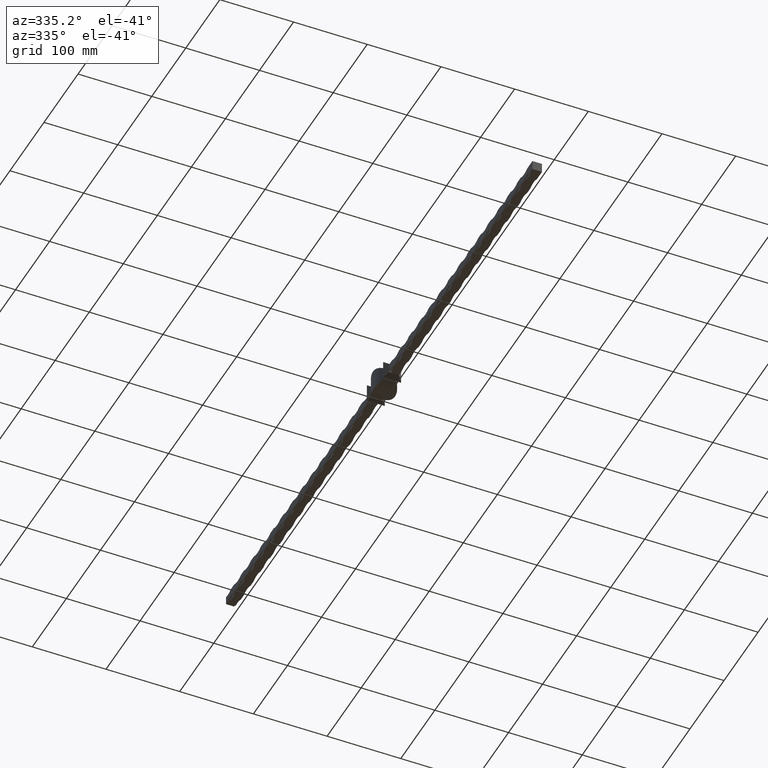
[diagram: clean part render]
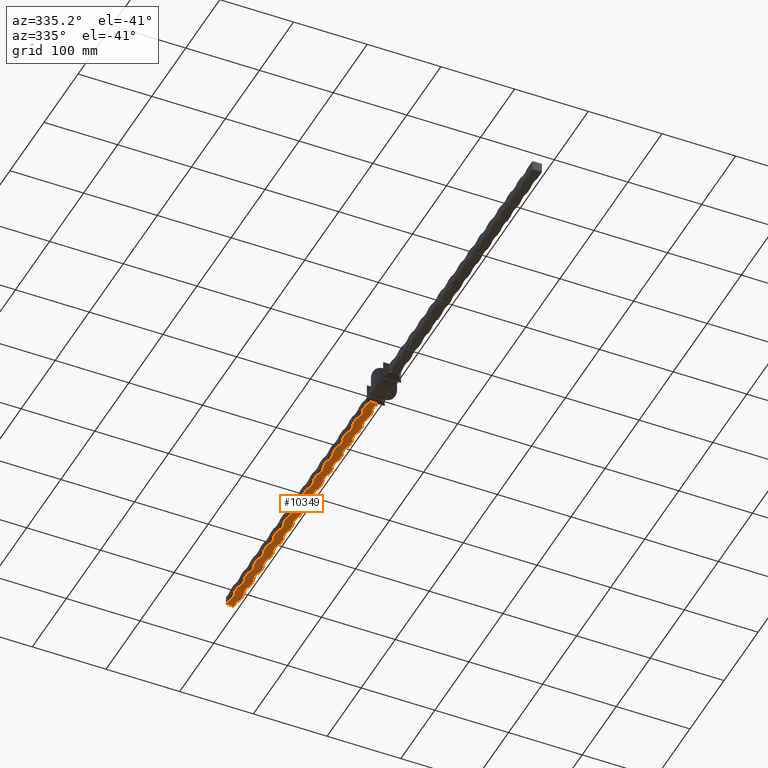
[diagram: same view with one face highlighted and labeled with its STEP entity id]
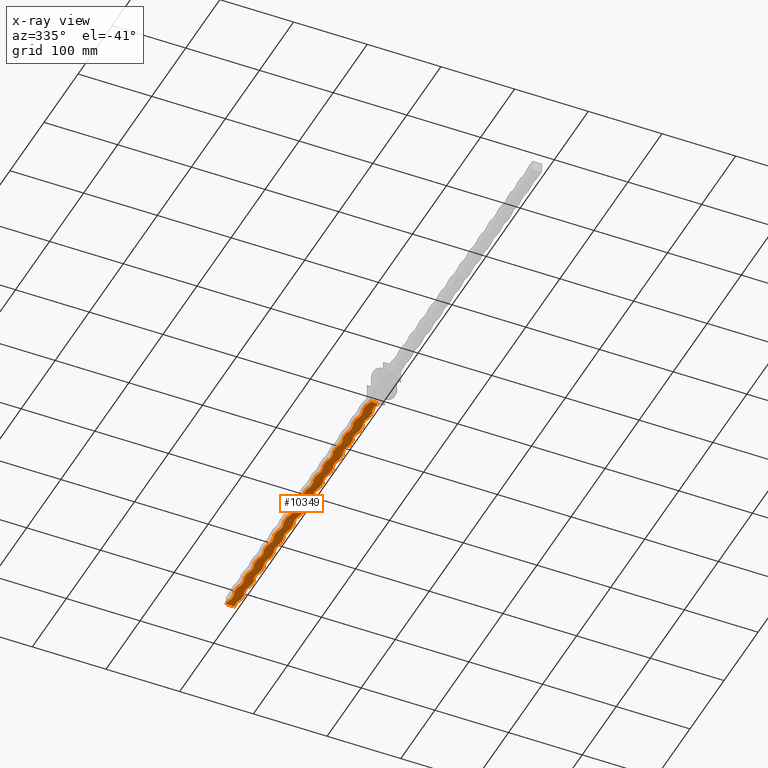
[diagram: x-ray of the same camera — body ghosted, the highlighted face saturated]
A machine part, auxiliary view. The second image highlights one B-rep face of the part: STEP entity #10349.
The next image is the same camera in x-ray: the body ghosted, the highlighted face saturated — about 0% of this face is hidden behind the body in this view.
In plain terms, the highlighted planar face has unit normal (0, 0, 1).
Its self-contained STEP definition (entity closure, byte-faithful):
#22 = DIRECTION ( 'NONE',  ( -0.000000000000000000, -1.000000000000000000, -0.000000000000000000 ) ) ;
#53 = EDGE_CURVE ( 'NONE', #7041, #332, #10319, .T. ) ;
#93 = VECTOR ( 'NONE', #5450, 1000.000000000000000 ) ;
#105 = DIRECTION ( 'NONE',  ( -0.000000000000000000, -1.000000000000000000, -0.000000000000000000 ) ) ;
#122 = VERTEX_POINT ( 'NONE', #4727 ) ;
#126 = DIRECTION ( 'NONE',  ( 1.000000000000000000, 0.000000000000000000, 0.000000000000000000 ) ) ;
#136 = CARTESIAN_POINT ( 'NONE',  ( -6.500000000000000888, 450.0000000000000000, -6.499999999999999112 ) ) ;
#145 = AXIS2_PLACEMENT_3D ( 'NONE', #11147, #8956, #2846 ) ;
#179 = EDGE_CURVE ( 'NONE', #1884, #1511, #8609, .T. ) ;
#206 = ORIENTED_EDGE ( 'NONE', *, *, #11184, .F. ) ;
#210 = AXIS2_PLACEMENT_3D ( 'NONE', #8120, #3117, #4297 ) ;
#216 = CARTESIAN_POINT ( 'NONE',  ( 25.24999999999998579, 38.99999999999997868, -6.500000000000014211 ) ) ;
#218 = CARTESIAN_POINT ( 'NONE',  ( 6.499999999999999112, 397.0000000000000000, -6.500000000000000888 ) ) ;
#246 = CARTESIAN_POINT ( 'NONE',  ( 6.499999999999999112, 252.0000000000000000, -6.500000000000000888 ) ) ;
#275 = VERTEX_POINT ( 'NONE', #7725 ) ;
#288 = VERTEX_POINT ( 'NONE', #11397 ) ;
#293 = DIRECTION ( 'NONE',  ( -0.000000000000000000, -1.000000000000000000, -0.000000000000000000 ) ) ;
#332 = VERTEX_POINT ( 'NONE', #2089 ) ;
#342 = VERTEX_POINT ( 'NONE', #5703 ) ;
#346 = EDGE_CURVE ( 'NONE', #10152, #1511, #8986, .T. ) ;
#347 = CIRCLE ( 'NONE', #10016, 21.25000000000000000 ) ;
#385 = VERTEX_POINT ( 'NONE', #14786 ) ;
#483 = ORIENTED_EDGE ( 'NONE', *, *, #5957, .T. ) ;
#558 = LINE ( 'NONE', #2034, #9791 ) ;
#595 = EDGE_CURVE ( 'NONE', #4409, #7179, #12580, .T. ) ;
#631 = CARTESIAN_POINT ( 'NONE',  ( -6.500000000000002665, 97.00000000000000000, -6.499999999999999112 ) ) ;
#640 = LINE ( 'NONE', #991, #1394 ) ;
#658 = VECTOR ( 'NONE', #2444, 1000.000000000000000 ) ;
#666 = VECTOR ( 'NONE', #9452, 1000.000000000000000 ) ;
#684 = CARTESIAN_POINT ( 'NONE',  ( -6.500000000000000888, 450.0000000000000000, -6.499999999999999112 ) ) ;
#695 = AXIS2_PLACEMENT_3D ( 'NONE', #2015, #5675, #7001 ) ;
#699 = AXIS2_PLACEMENT_3D ( 'NONE', #216, #9830, #7753 ) ;
#746 = CARTESIAN_POINT ( 'NONE',  ( -6.500000000000000888, 450.0000000000000000, -6.499999999999999112 ) ) ;
#769 = VERTEX_POINT ( 'NONE', #15560 ) ;
#790 = VERTEX_POINT ( 'NONE', #12084 ) ;
#795 = ORIENTED_EDGE ( 'NONE', *, *, #5411, .T. ) ;
#871 = CARTESIAN_POINT ( 'NONE',  ( 6.499999999999999112, 136.0000000000000000, -6.500000000000000888 ) ) ;
#876 = CARTESIAN_POINT ( 'NONE',  ( 6.499999999999995559, 376.9999999999999432, -6.500000000000014211 ) ) ;
#970 = CARTESIAN_POINT ( 'NONE',  ( -25.25000000000000355, 406.0000000000000000, -6.499999999999968914 ) ) ;
#982 = VERTEX_POINT ( 'NONE', #3245 ) ;
#991 = CARTESIAN_POINT ( 'NONE',  ( 6.499999999999997335, 450.0000000000000000, -6.499999999999999112 ) ) ;
#1134 = VERTEX_POINT ( 'NONE', #13233 ) ;
#1140 = VECTOR ( 'NONE', #10225, 1000.000000000000000 ) ;
#1220 = AXIS2_PLACEMENT_3D ( 'NONE', #13073, #5811, #7026 ) ;
#1236 = CARTESIAN_POINT ( 'NONE',  ( 6.499999999999997335, 450.0000000000000000, -6.499999999999999112 ) ) ;
#1239 = CARTESIAN_POINT ( 'NONE',  ( 6.499999999999995559, 290.0000000000000000, -6.500000000000014211 ) ) ;
#1307 = EDGE_CURVE ( 'NONE', #10897, #275, #15029, .T. ) ;
#1311 = ORIENTED_EDGE ( 'NONE', *, *, #13557, .F. ) ;
#1394 = VECTOR ( 'NONE', #13147, 1000.000000000000000 ) ;
#1397 = CARTESIAN_POINT ( 'NONE',  ( -6.500000000000002665, 126.0000000000000000, -6.499999999999999112 ) ) ;
#1409 = VECTOR ( 'NONE', #22, 1000.000000000000000 ) ;
#1415 = DIRECTION ( 'NONE',  ( -0.000000000000000000, -1.000000000000000000, -0.000000000000000000 ) ) ;
#1452 = EDGE_CURVE ( 'NONE', #14408, #2236, #15590, .T. ) ;
#1499 = ORIENTED_EDGE ( 'NONE', *, *, #10053, .T. ) ;
#1511 = VERTEX_POINT ( 'NONE', #13324 ) ;
#1514 = CARTESIAN_POINT ( 'NONE',  ( -6.500000000000000888, 450.0000000000000000, -6.499999999999999112 ) ) ;
#1589 = EDGE_CURVE ( 'NONE', #7041, #6484, #10472, .T. ) ;
#1597 = CARTESIAN_POINT ( 'NONE',  ( 6.499999999999999112, 339.0000000000000000, -6.500000000000000888 ) ) ;
#1609 = ORIENTED_EDGE ( 'NONE', *, *, #5296, .F. ) ;
#1610 = CARTESIAN_POINT ( 'NONE',  ( -6.500000000000002665, 300.0000000000000568, -6.499999999999999112 ) ) ;
#1616 = DIRECTION ( 'NONE',  ( -0.000000000000000000, -0.000000000000000000, -1.000000000000000000 ) ) ;
#1617 = ORIENTED_EDGE ( 'NONE', *, *, #7255, .T. ) ;
#1631 = ORIENTED_EDGE ( 'NONE', *, *, #179, .T. ) ;
#1690 = VERTEX_POINT ( 'NONE', #3708 ) ;
#1705 = VERTEX_POINT ( 'NONE', #4832 ) ;
#1710 = EDGE_CURVE ( 'NONE', #14061, #769, #1935, .T. ) ;
#1787 = VERTEX_POINT ( 'NONE', #14132 ) ;
#1801 = CARTESIAN_POINT ( 'NONE',  ( -6.500000000000002665, 134.9999999999999432, -6.499999999999999112 ) ) ;
#1845 = EDGE_CURVE ( 'NONE', #3215, #8845, #13138, .T. ) ;
#1858 = CIRCLE ( 'NONE', #15683, 21.24999999999998934 ) ;
#1884 = VERTEX_POINT ( 'NONE', #14079 ) ;
#1921 = CIRCLE ( 'NONE', #11533, 21.24999999999998934 ) ;
#1928 = ORIENTED_EDGE ( 'NONE', *, *, #53, .T. ) ;
#1935 = LINE ( 'NONE', #1514, #8008 ) ;
#1956 = CIRCLE ( 'NONE', #3672, 21.25000000000000000 ) ;
#1967 = DIRECTION ( 'NONE',  ( 0.000000000000000000, 0.000000000000000000, 1.000000000000000000 ) ) ;
#1971 = DIRECTION ( 'NONE',  ( -0.000000000000000000, -1.000000000000000000, -0.000000000000000000 ) ) ;
#1976 = CARTESIAN_POINT ( 'NONE',  ( -6.500000000000002665, 445.0000000000000000, -6.499999999999999112 ) ) ;
#2015 = CARTESIAN_POINT ( 'NONE',  ( -25.25000000000000355, 319.0000000000000000, -6.499999999999968914 ) ) ;
#2016 = CARTESIAN_POINT ( 'NONE',  ( -6.500000000000002665, 337.9999999999999432, -6.499999999999999112 ) ) ;
#2034 = CARTESIAN_POINT ( 'NONE',  ( -6.500000000000000888, 450.0000000000000000, -6.499999999999999112 ) ) ;
#2037 = EDGE_CURVE ( 'NONE', #12160, #5964, #14439, .T. ) ;
#2054 = DIRECTION ( 'NONE',  ( -0.000000000000000000, -1.000000000000000000, -0.000000000000000000 ) ) ;
#2075 = DIRECTION ( 'NONE',  ( 0.000000000000000000, 0.000000000000000000, 1.000000000000000000 ) ) ;
#2089 = CARTESIAN_POINT ( 'NONE',  ( -6.500000000000002665, 329.0000000000000000, -6.499999999999999112 ) ) ;
#2116 = EDGE_CURVE ( 'NONE', #4409, #8269, #4982, .T. ) ;
#2176 = VECTOR ( 'NONE', #13474, 1000.000000000000000 ) ;
#2236 = VERTEX_POINT ( 'NONE', #1976 ) ;
#2302 = DIRECTION ( 'NONE',  ( 1.000000000000000000, 0.000000000000000000, 0.000000000000000000 ) ) ;
#2333 = DIRECTION ( 'NONE',  ( -0.000000000000000000, -1.000000000000000000, -0.000000000000000000 ) ) ;
#2438 = AXIS2_PLACEMENT_3D ( 'NONE', #970, #15594, #2302 ) ;
#2444 = DIRECTION ( 'NONE',  ( -0.000000000000000000, -1.000000000000000000, -0.000000000000000000 ) ) ;
#2496 = ORIENTED_EDGE ( 'NONE', *, *, #13737, .F. ) ;
#2548 = ORIENTED_EDGE ( 'NONE', *, *, #2888, .F. ) ;
#2553 = CARTESIAN_POINT ( 'NONE',  ( 6.499999999999995559, 260.9999999999999432, -6.500000000000014211 ) ) ;
#2696 = VECTOR ( 'NONE', #3918, 1000.000000000000000 ) ;
#2701 = LINE ( 'NONE', #8588, #12010 ) ;
#2703 = VERTEX_POINT ( 'NONE', #1397 ) ;
#2764 = CARTESIAN_POINT ( 'NONE',  ( -6.500000000000002665, 155.0000000000000284, -6.499999999999999112 ) ) ;
#2787 = VERTEX_POINT ( 'NONE', #5442 ) ;
#2803 = AXIS2_PLACEMENT_3D ( 'NONE', #6581, #14202, #15313 ) ;
#2818 = DIRECTION ( 'NONE',  ( 1.000000000000000000, 0.000000000000000000, 0.000000000000000000 ) ) ;
#2846 = DIRECTION ( 'NONE',  ( 1.000000000000000000, -2.612289469706252052E-15, 0.000000000000000000 ) ) ;
#2881 = CARTESIAN_POINT ( 'NONE',  ( -6.500000000000002665, 47.99999999999995026, -6.499999999999999112 ) ) ;
#2888 = EDGE_CURVE ( 'NONE', #15676, #275, #9968, .T. ) ;
#2904 = DIRECTION ( 'NONE',  ( 1.000000000000000000, 0.000000000000000000, 0.000000000000000000 ) ) ;
#2927 = DIRECTION ( 'NONE',  ( 0.000000000000000000, 0.000000000000000000, 1.000000000000000000 ) ) ;
#2959 = VERTEX_POINT ( 'NONE', #6732 ) ;
#3101 = CARTESIAN_POINT ( 'NONE',  ( 5.999999999999991118, 30.00000000000000000, -6.500000000000014211 ) ) ;
#3112 = DIRECTION ( 'NONE',  ( -0.000000000000000000, -0.000000000000000000, -1.000000000000000000 ) ) ;
#3117 = DIRECTION ( 'NONE',  ( 0.000000000000000000, 0.000000000000000000, 1.000000000000000000 ) ) ;
#3142 = ORIENTED_EDGE ( 'NONE', *, *, #1307, .T. ) ;
#3215 = VERTEX_POINT ( 'NONE', #15672 ) ;
#3245 = CARTESIAN_POINT ( 'NONE',  ( -6.500000000000002665, 76.99999999999995737, -6.499999999999999112 ) ) ;
#3249 = AXIS2_PLACEMENT_3D ( 'NONE', #7165, #3446, #15529 ) ;
#3285 = VERTEX_POINT ( 'NONE', #6492 ) ;
#3288 = EDGE_CURVE ( 'NONE', #1134, #13100, #12611, .T. ) ;
#3296 = ORIENTED_EDGE ( 'NONE', *, *, #6009, .F. ) ;
#3312 = LINE ( 'NONE', #14690, #6384 ) ;
#3319 = CARTESIAN_POINT ( 'NONE',  ( -6.500000000000002665, 308.9999999999999432, -6.499999999999999112 ) ) ;
#3327 = VERTEX_POINT ( 'NONE', #6912 ) ;
#3340 = ORIENTED_EDGE ( 'NONE', *, *, #14578, .F. ) ;
#3358 = AXIS2_PLACEMENT_3D ( 'NONE', #9801, #7391, #126 ) ;
#3399 = VERTEX_POINT ( 'NONE', #11640 ) ;
#3446 = DIRECTION ( 'NONE',  ( 0.000000000000000000, 0.000000000000000000, 1.000000000000000000 ) ) ;
#3479 = AXIS2_PLACEMENT_3D ( 'NONE', #6370, #6416, #14882 ) ;
#3514 = DIRECTION ( 'NONE',  ( -0.000000000000000000, -0.000000000000000000, -1.000000000000000000 ) ) ;
#3616 = DIRECTION ( 'NONE',  ( -0.000000000000000000, -1.000000000000000000, -0.000000000000000000 ) ) ;
#3632 = CARTESIAN_POINT ( 'NONE',  ( 6.499999999999997335, 450.0000000000000000, -6.499999999999999112 ) ) ;
#3661 = EDGE_CURVE ( 'NONE', #7578, #8074, #8424, .T. ) ;
#3672 = AXIS2_PLACEMENT_3D ( 'NONE', #15319, #1967, #8063 ) ;
#3708 = CARTESIAN_POINT ( 'NONE',  ( 6.499999999999999112, 310.0000000000000568, -6.500000000000000888 ) ) ;
#3772 = LINE ( 'NONE', #11232, #7022 ) ;
#3774 = ORIENTED_EDGE ( 'NONE', *, *, #6791, .F. ) ;
#3798 = LINE ( 'NONE', #4962, #10649 ) ;
#3805 = VECTOR ( 'NONE', #6502, 1000.000000000000000 ) ;
#3862 = VERTEX_POINT ( 'NONE', #1801 ) ;
#3901 = ORIENTED_EDGE ( 'NONE', *, *, #7600, .T. ) ;
#3918 = DIRECTION ( 'NONE',  ( -0.000000000000000000, -1.000000000000000000, -0.000000000000000000 ) ) ;
#3964 = ORIENTED_EDGE ( 'NONE', *, *, #14523, .T. ) ;
#3975 = CARTESIAN_POINT ( 'NONE',  ( 25.24999999999998579, 328.9999999999999432, -6.500000000000014211 ) ) ;
#4177 = LINE ( 'NONE', #136, #5891 ) ;
#4213 = CARTESIAN_POINT ( 'NONE',  ( -6.500000000000000888, 450.0000000000000000, -6.499999999999999112 ) ) ;
#4233 = EDGE_CURVE ( 'NONE', #13535, #15670, #4430, .T. ) ;
#4297 = DIRECTION ( 'NONE',  ( 1.000000000000000000, 0.000000000000000000, -0.000000000000000000 ) ) ;
#4314 = EDGE_CURVE ( 'NONE', #982, #5175, #11833, .T. ) ;
#4346 = CARTESIAN_POINT ( 'NONE',  ( 25.24999999999998579, 184.0000000000000000, -6.500000000000014211 ) ) ;
#4402 = VECTOR ( 'NONE', #10065, 1000.000000000000000 ) ;
#4404 = VECTOR ( 'NONE', #105, 1000.000000000000000 ) ;
#4408 = CIRCLE ( 'NONE', #13743, 21.24999999999998934 ) ;
#4409 = VERTEX_POINT ( 'NONE', #2881 ) ;
#4430 = CIRCLE ( 'NONE', #3358, 21.25000000000000000 ) ;
#4509 = EDGE_CURVE ( 'NONE', #385, #1787, #14487, .T. ) ;
#4510 = AXIS2_PLACEMENT_3D ( 'NONE', #11291, #15032, #6559 ) ;
#4612 = CARTESIAN_POINT ( 'NONE',  ( -6.500000000000002665, 242.0000000000000284, -6.499999999999999112 ) ) ;
#4685 = DIRECTION ( 'NONE',  ( 1.000000000000000000, 0.000000000000000000, 0.000000000000000000 ) ) ;
#4727 = CARTESIAN_POINT ( 'NONE',  ( -6.500000000000002665, 105.9999999999999574, -6.499999999999999112 ) ) ;
#4747 = AXIS2_PLACEMENT_3D ( 'NONE', #15152, #6528, #2904 ) ;
#4792 = ORIENTED_EDGE ( 'NONE', *, *, #6646, .F. ) ;
#4832 = CARTESIAN_POINT ( 'NONE',  ( 6.499999999999999112, 78.00000000000000000, -6.500000000000000888 ) ) ;
#4855 = CARTESIAN_POINT ( 'NONE',  ( -6.500000000000000888, 450.0000000000000000, -6.499999999999999112 ) ) ;
#4868 = DIRECTION ( 'NONE',  ( 0.000000000000000000, 0.000000000000000000, 1.000000000000000000 ) ) ;
#4870 = DIRECTION ( 'NONE',  ( 1.000000000000000000, -2.612289469706252052E-15, 0.000000000000000000 ) ) ;
#4873 = ORIENTED_EDGE ( 'NONE', *, *, #7723, .F. ) ;
#4897 = DIRECTION ( 'NONE',  ( 1.000000000000000000, 1.959217102279688941E-15, 0.000000000000000000 ) ) ;
#4908 = VERTEX_POINT ( 'NONE', #1597 ) ;
#4927 = CARTESIAN_POINT ( 'NONE',  ( 6.499999999999997335, 450.0000000000000000, -6.499999999999999112 ) ) ;
#4962 = CARTESIAN_POINT ( 'NONE',  ( 6.499999999999997335, 450.0000000000000000, -6.499999999999999112 ) ) ;
#4980 = VERTEX_POINT ( 'NONE', #2764 ) ;
#4982 = CIRCLE ( 'NONE', #7319, 21.25000000000000000 ) ;
#4990 = ORIENTED_EDGE ( 'NONE', *, *, #1845, .T. ) ;
#5069 = ORIENTED_EDGE ( 'NONE', *, *, #12268, .F. ) ;
#5086 = DIRECTION ( 'NONE',  ( -0.000000000000000000, -1.000000000000000000, -0.000000000000000000 ) ) ;
#5142 = EDGE_CURVE ( 'NONE', #3215, #9014, #14455, .T. ) ;
#5175 = VERTEX_POINT ( 'NONE', #631 ) ;
#5189 = DIRECTION ( 'NONE',  ( 1.000000000000000000, 0.000000000000000000, 0.000000000000000000 ) ) ;
#5191 = DIRECTION ( 'NONE',  ( -0.000000000000000000, -1.000000000000000000, -0.000000000000000000 ) ) ;
#5240 = DIRECTION ( 'NONE',  ( -0.000000000000000000, -0.000000000000000000, -1.000000000000000000 ) ) ;
#5241 = CARTESIAN_POINT ( 'NONE',  ( 6.499999999999995559, 348.0000000000000000, -6.500000000000014211 ) ) ;
#5296 = EDGE_CURVE ( 'NONE', #2787, #1705, #9909, .T. ) ;
#5411 = EDGE_CURVE ( 'NONE', #122, #2703, #8961, .T. ) ;
#5434 = LINE ( 'NONE', #8883, #13960 ) ;
#5437 = ORIENTED_EDGE ( 'NONE', *, *, #8293, .F. ) ;
#5442 = CARTESIAN_POINT ( 'NONE',  ( 6.499999999999995559, 57.99999999999997868, -6.500000000000014211 ) ) ;
#5450 = DIRECTION ( 'NONE',  ( -0.000000000000000000, -1.000000000000000000, -0.000000000000000000 ) ) ;
#5675 = DIRECTION ( 'NONE',  ( 0.000000000000000000, 0.000000000000000000, 1.000000000000000000 ) ) ;
#5703 = CARTESIAN_POINT ( 'NONE',  ( 6.499999999999999112, 49.00000000000000000, -6.500000000000000888 ) ) ;
#5753 = ORIENTED_EDGE ( 'NONE', *, *, #2116, .T. ) ;
#5779 = EDGE_CURVE ( 'NONE', #3327, #1705, #3798, .T. ) ;
#5792 = ORIENTED_EDGE ( 'NONE', *, *, #8195, .T. ) ;
#5811 = DIRECTION ( 'NONE',  ( -0.000000000000000000, -0.000000000000000000, -1.000000000000000000 ) ) ;
#5836 = CIRCLE ( 'NONE', #4747, 21.24999999999998934 ) ;
#5891 = VECTOR ( 'NONE', #293, 1000.000000000000000 ) ;
#5907 = CIRCLE ( 'NONE', #8779, 21.24999999999998934 ) ;
#5948 = VECTOR ( 'NONE', #1415, 1000.000000000000000 ) ;
#5949 = CARTESIAN_POINT ( 'NONE',  ( -6.500000000000000888, 450.0000000000000000, -6.499999999999999112 ) ) ;
#5957 = EDGE_CURVE ( 'NONE', #7402, #9640, #7612, .T. ) ;
#5964 = VERTEX_POINT ( 'NONE', #8635 ) ;
#5999 = CARTESIAN_POINT ( 'NONE',  ( -25.25000000000000355, 203.0000000000000000, -6.499999999999968914 ) ) ;
#6009 = EDGE_CURVE ( 'NONE', #3862, #2703, #7213, .T. ) ;
#6019 = CARTESIAN_POINT ( 'NONE',  ( 6.499999999999997335, 450.0000000000000000, -6.499999999999999112 ) ) ;
#6040 = CARTESIAN_POINT ( 'NONE',  ( -6.500000000000002665, 39.00000000000000000, -6.499999999999999112 ) ) ;
#6061 = ORIENTED_EDGE ( 'NONE', *, *, #6226, .T. ) ;
#6066 = VECTOR ( 'NONE', #8054, 1000.000000000000000 ) ;
#6075 = CARTESIAN_POINT ( 'NONE',  ( -25.25000000000000355, 377.0000000000000000, -6.499999999999968914 ) ) ;
#6119 = CIRCLE ( 'NONE', #15657, 21.25000000000000000 ) ;
#6180 = DIRECTION ( 'NONE',  ( -0.000000000000000000, -1.000000000000000000, -0.000000000000000000 ) ) ;
#6224 = CIRCLE ( 'NONE', #8204, 21.24999999999998934 ) ;
#6226 = EDGE_CURVE ( 'NONE', #15676, #4908, #11610, .T. ) ;
#6370 = CARTESIAN_POINT ( 'NONE',  ( -25.25000000000000355, 116.0000000000000000, -6.499999999999968914 ) ) ;
#6384 = VECTOR ( 'NONE', #12102, 1000.000000000000000 ) ;
#6397 = CARTESIAN_POINT ( 'NONE',  ( -6.500000000000002665, 184.0000000000000284, -6.499999999999999112 ) ) ;
#6416 = DIRECTION ( 'NONE',  ( 0.000000000000000000, 0.000000000000000000, 1.000000000000000000 ) ) ;
#6439 = ORIENTED_EDGE ( 'NONE', *, *, #5142, .F. ) ;
#6484 = VERTEX_POINT ( 'NONE', #1610 ) ;
#6492 = CARTESIAN_POINT ( 'NONE',  ( 6.499999999999995559, 203.0000000000000000, -6.500000000000014211 ) ) ;
#6502 = DIRECTION ( 'NONE',  ( -0.000000000000000000, -1.000000000000000000, -0.000000000000000000 ) ) ;
#6528 = DIRECTION ( 'NONE',  ( -0.000000000000000000, -0.000000000000000000, -1.000000000000000000 ) ) ;
#6546 = AXIS2_PLACEMENT_3D ( 'NONE', #14479, #14577, #4897 ) ;
#6551 = EDGE_CURVE ( 'NONE', #12789, #2236, #558, .T. ) ;
#6559 = DIRECTION ( 'NONE',  ( 1.000000000000000000, 0.000000000000000000, 0.000000000000000000 ) ) ;
#6561 = LINE ( 'NONE', #9616, #11699 ) ;
#6581 = CARTESIAN_POINT ( 'NONE',  ( -25.25000000000000355, 29.00000000000000000, -6.499999999999968914 ) ) ;
#6595 = DIRECTION ( 'NONE',  ( 0.000000000000000000, 0.000000000000000000, 1.000000000000000000 ) ) ;
#6604 = CARTESIAN_POINT ( 'NONE',  ( 6.499999999999997335, 450.0000000000000000, -6.499999999999999112 ) ) ;
#6646 = EDGE_CURVE ( 'NONE', #2959, #13100, #10173, .T. ) ;
#6732 = CARTESIAN_POINT ( 'NONE',  ( -6.500000000000002665, 250.9999999999999432, -6.499999999999999112 ) ) ;
#6752 = ORIENTED_EDGE ( 'NONE', *, *, #11187, .F. ) ;
#6761 = VERTEX_POINT ( 'NONE', #12216 ) ;
#6784 = EDGE_CURVE ( 'NONE', #11965, #15611, #6561, .T. ) ;
#6791 = EDGE_CURVE ( 'NONE', #14408, #8845, #3312, .T. ) ;
#6806 = DIRECTION ( 'NONE',  ( 0.000000000000000000, 0.000000000000000000, 1.000000000000000000 ) ) ;
#6908 = CARTESIAN_POINT ( 'NONE',  ( -6.500000000000000888, 450.0000000000000000, -6.499999999999999112 ) ) ;
#6912 = CARTESIAN_POINT ( 'NONE',  ( 6.499999999999995559, 86.99999999999998579, -6.500000000000014211 ) ) ;
#6940 = CIRCLE ( 'NONE', #699, 21.24999999999998934 ) ;
#6953 = DIRECTION ( 'NONE',  ( 1.000000000000000000, -2.612289469706252052E-15, 0.000000000000000000 ) ) ;
#7001 = DIRECTION ( 'NONE',  ( 1.000000000000000000, 0.000000000000000000, 0.000000000000000000 ) ) ;
#7021 = VERTEX_POINT ( 'NONE', #2016 ) ;
#7022 = VECTOR ( 'NONE', #5191, 1000.000000000000000 ) ;
#7026 = DIRECTION ( 'NONE',  ( 1.000000000000000000, -2.612289469706252052E-15, 0.000000000000000000 ) ) ;
#7041 = VERTEX_POINT ( 'NONE', #3319 ) ;
#7066 = AXIS2_PLACEMENT_3D ( 'NONE', #14863, #1616, #11176 ) ;
#7144 = EDGE_CURVE ( 'NONE', #10152, #9427, #640, .T. ) ;
#7155 = CARTESIAN_POINT ( 'NONE',  ( 25.24999999999998579, 213.0000000000000000, -6.500000000000014211 ) ) ;
#7165 = CARTESIAN_POINT ( 'NONE',  ( -25.25000000000000355, 435.0000000000000000, -6.499999999999968914 ) ) ;
#7179 = VERTEX_POINT ( 'NONE', #6040 ) ;
#7198 = LINE ( 'NONE', #8715, #10250 ) ;
#7213 = LINE ( 'NONE', #10126, #1140 ) ;
#7255 = EDGE_CURVE ( 'NONE', #14738, #13008, #9774, .T. ) ;
#7319 = AXIS2_PLACEMENT_3D ( 'NONE', #9188, #6595, #13909 ) ;
#7332 = CARTESIAN_POINT ( 'NONE',  ( 25.24999999999998579, 416.0000000000000000, -6.500000000000014211 ) ) ;
#7340 = CIRCLE ( 'NONE', #9012, 21.24999999999998934 ) ;
#7391 = DIRECTION ( 'NONE',  ( 0.000000000000000000, 0.000000000000000000, 1.000000000000000000 ) ) ;
#7402 = VERTEX_POINT ( 'NONE', #9208 ) ;
#7414 = CARTESIAN_POINT ( 'NONE',  ( 6.499999999999997335, 450.0000000000000000, -6.499999999999999112 ) ) ;
#7473 = DIRECTION ( 'NONE',  ( 1.000000000000000000, 0.000000000000000000, 0.000000000000000000 ) ) ;
#7578 = VERTEX_POINT ( 'NONE', #1239 ) ;
#7600 = EDGE_CURVE ( 'NONE', #14061, #9014, #8623, .T. ) ;
#7612 = LINE ( 'NONE', #13825, #4402 ) ;
#7621 = ORIENTED_EDGE ( 'NONE', *, *, #10314, .T. ) ;
#7723 = EDGE_CURVE ( 'NONE', #982, #8269, #5434, .T. ) ;
#7725 = CARTESIAN_POINT ( 'NONE',  ( 6.499999999999999112, 368.0000000000000568, -6.500000000000000888 ) ) ;
#7734 = CARTESIAN_POINT ( 'NONE',  ( 6.499999999999997335, 450.0000000000000000, -6.499999999999999112 ) ) ;
#7741 = DIRECTION ( 'NONE',  ( -0.000000000000000000, -1.000000000000000000, -0.000000000000000000 ) ) ;
#7753 = DIRECTION ( 'NONE',  ( 1.000000000000000000, 0.000000000000000000, 0.000000000000000000 ) ) ;
#7758 = ORIENTED_EDGE ( 'NONE', *, *, #1710, .F. ) ;
#7765 = DIRECTION ( 'NONE',  ( 1.000000000000000000, -2.612289469706252052E-15, 0.000000000000000000 ) ) ;
#7806 = EDGE_CURVE ( 'NONE', #3285, #12835, #8270, .T. ) ;
#7853 = DIRECTION ( 'NONE',  ( -0.000000000000000000, -0.000000000000000000, -1.000000000000000000 ) ) ;
#7876 = LINE ( 'NONE', #684, #13379 ) ;
#7981 = ORIENTED_EDGE ( 'NONE', *, *, #14414, .F. ) ;
#8008 = VECTOR ( 'NONE', #11059, 1000.000000000000000 ) ;
#8048 = EDGE_CURVE ( 'NONE', #7578, #1690, #11508, .T. ) ;
#8054 = DIRECTION ( 'NONE',  ( -0.000000000000000000, -1.000000000000000000, -0.000000000000000000 ) ) ;
#8063 = DIRECTION ( 'NONE',  ( 1.000000000000000000, 0.000000000000000000, 0.000000000000000000 ) ) ;
#8074 = VERTEX_POINT ( 'NONE', #10627 ) ;
#8120 = CARTESIAN_POINT ( 'NONE',  ( -6.500000000000000888, 450.0000000000000000, -6.499999999999999112 ) ) ;
#8195 = EDGE_CURVE ( 'NONE', #2787, #342, #14714, .T. ) ;
#8204 = AXIS2_PLACEMENT_3D ( 'NONE', #12674, #12787, #8908 ) ;
#8269 = VERTEX_POINT ( 'NONE', #9991 ) ;
#8270 = LINE ( 'NONE', #6604, #93 ) ;
#8290 = CARTESIAN_POINT ( 'NONE',  ( -25.25000000000000355, 348.0000000000000568, -6.499999999999968914 ) ) ;
#8293 = EDGE_CURVE ( 'NONE', #11965, #342, #6940, .T. ) ;
#8424 = LINE ( 'NONE', #7414, #2176 ) ;
#8429 = DIRECTION ( 'NONE',  ( -0.000000000000000000, -0.000000000000000000, -1.000000000000000000 ) ) ;
#8506 = EDGE_CURVE ( 'NONE', #12465, #12789, #7876, .T. ) ;
#8539 = ORIENTED_EDGE ( 'NONE', *, *, #6551, .F. ) ;
#8588 = CARTESIAN_POINT ( 'NONE',  ( 6.499999999999997335, 450.0000000000000000, -6.499999999999999112 ) ) ;
#8609 = LINE ( 'NONE', #12444, #5948 ) ;
#8623 = CIRCLE ( 'NONE', #13724, 21.25000000000000000 ) ;
#8635 = CARTESIAN_POINT ( 'NONE',  ( 6.499999999999999112, 107.0000000000000142, -6.500000000000000888 ) ) ;
#8655 = AXIS2_PLACEMENT_3D ( 'NONE', #15064, #10307, #2818 ) ;
#8715 = CARTESIAN_POINT ( 'NONE',  ( -6.500000000000000888, 450.0000000000000000, -6.499999999999999112 ) ) ;
#8752 = LINE ( 'NONE', #13707, #3805 ) ;
#8779 = AXIS2_PLACEMENT_3D ( 'NONE', #4346, #14106, #12850 ) ;
#8845 = VERTEX_POINT ( 'NONE', #11360 ) ;
#8847 = ORIENTED_EDGE ( 'NONE', *, *, #7806, .T. ) ;
#8862 = CARTESIAN_POINT ( 'NONE',  ( -6.500000000000000888, 450.0000000000000000, -6.499999999999999112 ) ) ;
#8883 = CARTESIAN_POINT ( 'NONE',  ( -6.500000000000000888, 450.0000000000000000, -6.499999999999999112 ) ) ;
#8889 = CIRCLE ( 'NONE', #15301, 21.25000000000000000 ) ;
#8890 = CARTESIAN_POINT ( 'NONE',  ( 6.499999999999995559, 145.0000000000000000, -6.500000000000014211 ) ) ;
#8908 = DIRECTION ( 'NONE',  ( 1.000000000000000000, 0.000000000000000000, 0.000000000000000000 ) ) ;
#8944 = ORIENTED_EDGE ( 'NONE', *, *, #3288, .T. ) ;
#8956 = DIRECTION ( 'NONE',  ( -0.000000000000000000, -0.000000000000000000, -1.000000000000000000 ) ) ;
#8961 = CIRCLE ( 'NONE', #3479, 21.25000000000000000 ) ;
#8980 = CARTESIAN_POINT ( 'NONE',  ( -25.25000000000000355, 290.0000000000000568, -6.499999999999968914 ) ) ;
#8986 = CIRCLE ( 'NONE', #10767, 21.24999999999998934 ) ;
#8992 = CARTESIAN_POINT ( 'NONE',  ( -6.500000000000002665, 163.9999999999999716, -6.499999999999999112 ) ) ;
#9012 = AXIS2_PLACEMENT_3D ( 'NONE', #14157, #3112, #6953 ) ;
#9014 = VERTEX_POINT ( 'NONE', #11517 ) ;
#9119 = VERTEX_POINT ( 'NONE', #12026 ) ;
#9142 = VECTOR ( 'NONE', #1971, 1000.000000000000000 ) ;
#9165 = AXIS2_PLACEMENT_3D ( 'NONE', #10023, #11262, #10293 ) ;
#9185 = DIRECTION ( 'NONE',  ( -1.000000000000000000, -0.000000000000000000, -0.000000000000000000 ) ) ;
#9186 = DIRECTION ( 'NONE',  ( 1.000000000000000000, 0.000000000000000000, 0.000000000000000000 ) ) ;
#9188 = CARTESIAN_POINT ( 'NONE',  ( -25.25000000000000355, 58.00000000000000000, -6.499999999999968914 ) ) ;
#9208 = CARTESIAN_POINT ( 'NONE',  ( 6.499999999999995559, 406.0000000000000000, -6.500000000000014211 ) ) ;
#9254 = ORIENTED_EDGE ( 'NONE', *, *, #8506, .F. ) ;
#9285 = LINE ( 'NONE', #13889, #6066 ) ;
#9427 = VERTEX_POINT ( 'NONE', #871 ) ;
#9452 = DIRECTION ( 'NONE',  ( -0.000000000000000000, -1.000000000000000000, -0.000000000000000000 ) ) ;
#9532 = ORIENTED_EDGE ( 'NONE', *, *, #1452, .T. ) ;
#9616 = CARTESIAN_POINT ( 'NONE',  ( -6.500000000000000888, 29.99999999999997158, -6.499999999999999112 ) ) ;
#9640 = VERTEX_POINT ( 'NONE', #218 ) ;
#9774 = LINE ( 'NONE', #3632, #1409 ) ;
#9775 = ORIENTED_EDGE ( 'NONE', *, *, #2037, .T. ) ;
#9791 = VECTOR ( 'NONE', #12910, 1000.000000000000000 ) ;
#9801 = CARTESIAN_POINT ( 'NONE',  ( -25.25000000000000355, 174.0000000000000284, -6.499999999999968914 ) ) ;
#9830 = DIRECTION ( 'NONE',  ( -0.000000000000000000, -0.000000000000000000, -1.000000000000000000 ) ) ;
#9848 = VERTEX_POINT ( 'NONE', #14065 ) ;
#9909 = CIRCLE ( 'NONE', #6546, 21.24999999999998934 ) ;
#9968 = CIRCLE ( 'NONE', #9165, 21.24999999999998934 ) ;
#9991 = CARTESIAN_POINT ( 'NONE',  ( -6.500000000000002665, 68.00000000000000000, -6.499999999999999112 ) ) ;
#9992 = CARTESIAN_POINT ( 'NONE',  ( 6.499999999999997335, 450.0000000000000000, -6.499999999999999112 ) ) ;
#10016 = AXIS2_PLACEMENT_3D ( 'NONE', #5999, #14379, #4685 ) ;
#10023 = CARTESIAN_POINT ( 'NONE',  ( 25.24999999999998579, 358.0000000000000000, -6.500000000000014211 ) ) ;
#10053 = EDGE_CURVE ( 'NONE', #288, #1690, #2701, .T. ) ;
#10064 = CIRCLE ( 'NONE', #14583, 21.25000000000000000 ) ;
#10065 = DIRECTION ( 'NONE',  ( -0.000000000000000000, -1.000000000000000000, -0.000000000000000000 ) ) ;
#10126 = CARTESIAN_POINT ( 'NONE',  ( -6.500000000000000888, 450.0000000000000000, -6.499999999999999112 ) ) ;
#10152 = VERTEX_POINT ( 'NONE', #8890 ) ;
#10173 = LINE ( 'NONE', #5949, #666 ) ;
#10225 = DIRECTION ( 'NONE',  ( -0.000000000000000000, -1.000000000000000000, -0.000000000000000000 ) ) ;
#10234 = LINE ( 'NONE', #4213, #13080 ) ;
#10250 = VECTOR ( 'NONE', #5086, 1000.000000000000000 ) ;
#10293 = DIRECTION ( 'NONE',  ( 1.000000000000000000, -2.612289469706252052E-15, 0.000000000000000000 ) ) ;
#10307 = DIRECTION ( 'NONE',  ( 0.000000000000000000, 0.000000000000000000, 1.000000000000000000 ) ) ;
#10314 = EDGE_CURVE ( 'NONE', #2959, #1787, #1956, .T. ) ;
#10319 = CIRCLE ( 'NONE', #695, 21.25000000000000000 ) ;
#10336 = ORIENTED_EDGE ( 'NONE', *, *, #1589, .F. ) ;
#10349 = ADVANCED_FACE ( 'NONE', ( #15031 ), #15365, .F. ) ;
#10376 = ORIENTED_EDGE ( 'NONE', *, *, #11177, .T. ) ;
#10472 = LINE ( 'NONE', #4855, #4404 ) ;
#10627 = CARTESIAN_POINT ( 'NONE',  ( 6.499999999999999112, 281.0000000000000000, -6.500000000000000888 ) ) ;
#10649 = VECTOR ( 'NONE', #13274, 1000.000000000000000 ) ;
#10680 = VECTOR ( 'NONE', #7741, 1000.000000000000000 ) ;
#10767 = AXIS2_PLACEMENT_3D ( 'NONE', #14186, #13629, #7473 ) ;
#10796 = ORIENTED_EDGE ( 'NONE', *, *, #13114, .F. ) ;
#10897 = VERTEX_POINT ( 'NONE', #876 ) ;
#10940 = ORIENTED_EDGE ( 'NONE', *, *, #12802, .T. ) ;
#11037 = CARTESIAN_POINT ( 'NONE',  ( 6.499999999999999112, 194.0000000000000000, -6.500000000000000888 ) ) ;
#11046 = DIRECTION ( 'NONE',  ( -1.000000000000000000, 0.000000000000000000, 0.000000000000000000 ) ) ;
#11059 = DIRECTION ( 'NONE',  ( -0.000000000000000000, -1.000000000000000000, -0.000000000000000000 ) ) ;
#11147 = CARTESIAN_POINT ( 'NONE',  ( 25.24999999999998579, 386.9999999999999432, -6.500000000000014211 ) ) ;
#11166 = CARTESIAN_POINT ( 'NONE',  ( 4.596610447677132782, 450.0000000000000000, -6.499999999999999112 ) ) ;
#11176 = DIRECTION ( 'NONE',  ( 1.000000000000000000, 0.000000000000000000, 0.000000000000000000 ) ) ;
#11177 = EDGE_CURVE ( 'NONE', #385, #6484, #6119, .T. ) ;
#11184 = EDGE_CURVE ( 'NONE', #288, #4908, #4408, .T. ) ;
#11187 = EDGE_CURVE ( 'NONE', #6761, #15670, #8752, .T. ) ;
#11216 = CIRCLE ( 'NONE', #7066, 21.24999999999998934 ) ;
#11231 = VECTOR ( 'NONE', #6180, 1000.000000000000000 ) ;
#11232 = CARTESIAN_POINT ( 'NONE',  ( 6.499999999999997335, 450.0000000000000000, -6.499999999999999112 ) ) ;
#11262 = DIRECTION ( 'NONE',  ( -0.000000000000000000, -0.000000000000000000, -1.000000000000000000 ) ) ;
#11263 = CARTESIAN_POINT ( 'NONE',  ( -6.500000000000002665, 424.9999999999999432, -6.499999999999999112 ) ) ;
#11272 = ORIENTED_EDGE ( 'NONE', *, *, #12760, .F. ) ;
#11276 = VECTOR ( 'NONE', #13920, 1000.000000000000000 ) ;
#11291 = CARTESIAN_POINT ( 'NONE',  ( -25.25000000000000355, 87.00000000000001421, -6.499999999999968914 ) ) ;
#11337 = DIRECTION ( 'NONE',  ( -0.000000000000000000, -1.000000000000000000, -0.000000000000000000 ) ) ;
#11360 = CARTESIAN_POINT ( 'NONE',  ( -6.500000000000002665, 416.0000000000000568, -6.499999999999999112 ) ) ;
#11397 = CARTESIAN_POINT ( 'NONE',  ( 6.499999999999995559, 318.9999999999999432, -6.500000000000014211 ) ) ;
#11405 = ORIENTED_EDGE ( 'NONE', *, *, #4233, .T. ) ;
#11472 = ORIENTED_EDGE ( 'NONE', *, *, #4314, .T. ) ;
#11476 = CARTESIAN_POINT ( 'NONE',  ( 25.24999999999998579, 444.9999999999999432, -6.500000000000014211 ) ) ;
#11508 = CIRCLE ( 'NONE', #1220, 21.24999999999998934 ) ;
#11517 = CARTESIAN_POINT ( 'NONE',  ( -6.500000000000002665, 387.0000000000000000, -6.499999999999999112 ) ) ;
#11533 = AXIS2_PLACEMENT_3D ( 'NONE', #11476, #7853, #15002 ) ;
#11554 = EDGE_CURVE ( 'NONE', #9119, #12465, #1921, .T. ) ;
#11582 = ORIENTED_EDGE ( 'NONE', *, *, #12392, .F. ) ;
#11610 = LINE ( 'NONE', #4927, #14244 ) ;
#11640 = CARTESIAN_POINT ( 'NONE',  ( -6.500000000000002665, 213.0000000000000284, -6.499999999999999112 ) ) ;
#11666 = EDGE_CURVE ( 'NONE', #1884, #12835, #5907, .T. ) ;
#11699 = VECTOR ( 'NONE', #11046, 1000.000000000000000 ) ;
#11713 = ORIENTED_EDGE ( 'NONE', *, *, #8048, .F. ) ;
#11833 = CIRCLE ( 'NONE', #4510, 21.25000000000000000 ) ;
#11837 = EDGE_CURVE ( 'NONE', #1134, #3399, #4177, .T. ) ;
#11939 = EDGE_CURVE ( 'NONE', #9119, #15695, #14422, .T. ) ;
#11965 = VERTEX_POINT ( 'NONE', #3101 ) ;
#12010 = VECTOR ( 'NONE', #2333, 1000.000000000000000 ) ;
#12026 = CARTESIAN_POINT ( 'NONE',  ( 6.499999999999995559, 435.0000000000000000, -6.500000000000014211 ) ) ;
#12072 = EDGE_LOOP ( 'NONE', ( #5437, #15318, #3964, #13605, #5753, #4873, #11472, #1311, #795, #3296, #15330, #10796, #11405, #6752, #10940, #13221, #8944, #4792, #7621, #14625, #10376, #10336, #1928, #5069, #12947, #7758, #3901, #6439, #4990, #3774, #9532, #8539, #9254, #12870, #12970, #2496, #483, #13086, #3142, #2548, #6061, #206, #1499, #11713, #15278, #3340, #1617, #15527, #13511, #11272, #8847, #12560, #1631, #12248, #13477, #7981, #9775, #11582, #14458, #1609, #5792 ) ) ;
#12084 = CARTESIAN_POINT ( 'NONE',  ( 6.499999999999995559, 231.9999999999999716, -6.500000000000014211 ) ) ;
#12102 = DIRECTION ( 'NONE',  ( -0.000000000000000000, -1.000000000000000000, -0.000000000000000000 ) ) ;
#12160 = VERTEX_POINT ( 'NONE', #12285 ) ;
#12216 = CARTESIAN_POINT ( 'NONE',  ( -6.500000000000002665, 192.9999999999999432, -6.499999999999999112 ) ) ;
#12248 = ORIENTED_EDGE ( 'NONE', *, *, #346, .F. ) ;
#12268 = EDGE_CURVE ( 'NONE', #7021, #332, #7198, .T. ) ;
#12285 = CARTESIAN_POINT ( 'NONE',  ( 6.499999999999995559, 115.9999999999999716, -6.500000000000014211 ) ) ;
#12373 = EDGE_CURVE ( 'NONE', #790, #9848, #3772, .T. ) ;
#12384 = CARTESIAN_POINT ( 'NONE',  ( -4.023542452872645114, 30.00000000000000000, -6.499999999999968914 ) ) ;
#12392 = EDGE_CURVE ( 'NONE', #3327, #5964, #11216, .T. ) ;
#12444 = CARTESIAN_POINT ( 'NONE',  ( 6.499999999999997335, 450.0000000000000000, -6.499999999999999112 ) ) ;
#12465 = VERTEX_POINT ( 'NONE', #11166 ) ;
#12560 = ORIENTED_EDGE ( 'NONE', *, *, #11666, .F. ) ;
#12580 = LINE ( 'NONE', #8862, #10680 ) ;
#12611 = CIRCLE ( 'NONE', #8655, 21.25000000000000000 ) ;
#12653 = EDGE_CURVE ( 'NONE', #3862, #4980, #10064, .T. ) ;
#12674 = CARTESIAN_POINT ( 'NONE',  ( 25.24999999999998579, 125.9999999999999716, -6.500000000000014211 ) ) ;
#12760 = EDGE_CURVE ( 'NONE', #3285, #9848, #14783, .T. ) ;
#12787 = DIRECTION ( 'NONE',  ( -0.000000000000000000, -0.000000000000000000, -1.000000000000000000 ) ) ;
#12789 = VERTEX_POINT ( 'NONE', #15627 ) ;
#12802 = EDGE_CURVE ( 'NONE', #6761, #3399, #347, .T. ) ;
#12835 = VERTEX_POINT ( 'NONE', #11037 ) ;
#12850 = DIRECTION ( 'NONE',  ( 1.000000000000000000, 0.000000000000000000, 0.000000000000000000 ) ) ;
#12870 = ORIENTED_EDGE ( 'NONE', *, *, #11554, .F. ) ;
#12903 = CIRCLE ( 'NONE', #145, 21.24999999999998934 ) ;
#12910 = DIRECTION ( 'NONE',  ( -0.000000000000000000, -1.000000000000000000, -0.000000000000000000 ) ) ;
#12947 = ORIENTED_EDGE ( 'NONE', *, *, #14093, .T. ) ;
#12970 = ORIENTED_EDGE ( 'NONE', *, *, #11939, .T. ) ;
#12998 = EDGE_CURVE ( 'NONE', #10897, #9640, #12903, .T. ) ;
#13008 = VERTEX_POINT ( 'NONE', #246 ) ;
#13073 = CARTESIAN_POINT ( 'NONE',  ( 25.24999999999998579, 300.0000000000000000, -6.500000000000014211 ) ) ;
#13080 = VECTOR ( 'NONE', #14358, 1000.000000000000000 ) ;
#13086 = ORIENTED_EDGE ( 'NONE', *, *, #12998, .F. ) ;
#13100 = VERTEX_POINT ( 'NONE', #4612 ) ;
#13114 = EDGE_CURVE ( 'NONE', #13535, #4980, #9285, .T. ) ;
#13138 = CIRCLE ( 'NONE', #2438, 21.25000000000000000 ) ;
#13147 = DIRECTION ( 'NONE',  ( -0.000000000000000000, -1.000000000000000000, -0.000000000000000000 ) ) ;
#13164 = DIRECTION ( 'NONE',  ( 1.000000000000000000, 0.000000000000000000, 0.000000000000000000 ) ) ;
#13213 = DIRECTION ( 'NONE',  ( 1.000000000000000000, 0.000000000000000000, 0.000000000000000000 ) ) ;
#13221 = ORIENTED_EDGE ( 'NONE', *, *, #11837, .F. ) ;
#13233 = CARTESIAN_POINT ( 'NONE',  ( -6.500000000000002665, 221.9999999999999716, -6.499999999999999112 ) ) ;
#13246 = CIRCLE ( 'NONE', #2803, 21.25000000000000000 ) ;
#13274 = DIRECTION ( 'NONE',  ( -0.000000000000000000, -1.000000000000000000, -0.000000000000000000 ) ) ;
#13324 = CARTESIAN_POINT ( 'NONE',  ( 6.499999999999999112, 165.0000000000000000, -6.500000000000000888 ) ) ;
#13379 = VECTOR ( 'NONE', #9185, 1000.000000000000000 ) ;
#13474 = DIRECTION ( 'NONE',  ( -0.000000000000000000, -1.000000000000000000, -0.000000000000000000 ) ) ;
#13477 = ORIENTED_EDGE ( 'NONE', *, *, #7144, .T. ) ;
#13511 = ORIENTED_EDGE ( 'NONE', *, *, #12373, .T. ) ;
#13535 = VERTEX_POINT ( 'NONE', #8992 ) ;
#13557 = EDGE_CURVE ( 'NONE', #122, #5175, #10234, .T. ) ;
#13605 = ORIENTED_EDGE ( 'NONE', *, *, #595, .F. ) ;
#13629 = DIRECTION ( 'NONE',  ( -0.000000000000000000, -0.000000000000000000, -1.000000000000000000 ) ) ;
#13707 = CARTESIAN_POINT ( 'NONE',  ( -6.500000000000000888, 450.0000000000000000, -6.499999999999999112 ) ) ;
#13724 = AXIS2_PLACEMENT_3D ( 'NONE', #6075, #4868, #14551 ) ;
#13737 = EDGE_CURVE ( 'NONE', #7402, #15695, #1858, .T. ) ;
#13743 = AXIS2_PLACEMENT_3D ( 'NONE', #3975, #5240, #7765 ) ;
#13825 = CARTESIAN_POINT ( 'NONE',  ( 6.499999999999997335, 450.0000000000000000, -6.499999999999999112 ) ) ;
#13889 = CARTESIAN_POINT ( 'NONE',  ( -6.500000000000000888, 450.0000000000000000, -6.499999999999999112 ) ) ;
#13909 = DIRECTION ( 'NONE',  ( 1.000000000000000000, 0.000000000000000000, 0.000000000000000000 ) ) ;
#13920 = DIRECTION ( 'NONE',  ( -0.000000000000000000, -1.000000000000000000, -0.000000000000000000 ) ) ;
#13960 = VECTOR ( 'NONE', #11337, 1000.000000000000000 ) ;
#14061 = VERTEX_POINT ( 'NONE', #15580 ) ;
#14065 = CARTESIAN_POINT ( 'NONE',  ( 6.499999999999999112, 223.0000000000000000, -6.500000000000000888 ) ) ;
#14079 = CARTESIAN_POINT ( 'NONE',  ( 6.499999999999995559, 174.0000000000000000, -6.500000000000014211 ) ) ;
#14093 = EDGE_CURVE ( 'NONE', #7021, #769, #8889, .T. ) ;
#14106 = DIRECTION ( 'NONE',  ( -0.000000000000000000, -0.000000000000000000, -1.000000000000000000 ) ) ;
#14132 = CARTESIAN_POINT ( 'NONE',  ( -6.500000000000002665, 271.0000000000000000, -6.499999999999999112 ) ) ;
#14157 = CARTESIAN_POINT ( 'NONE',  ( 25.24999999999998579, 270.9999999999999432, -6.500000000000014211 ) ) ;
#14186 = CARTESIAN_POINT ( 'NONE',  ( 25.24999999999998579, 155.0000000000000000, -6.500000000000014211 ) ) ;
#14202 = DIRECTION ( 'NONE',  ( 0.000000000000000000, 0.000000000000000000, 1.000000000000000000 ) ) ;
#14244 = VECTOR ( 'NONE', #3616, 1000.000000000000000 ) ;
#14358 = DIRECTION ( 'NONE',  ( -0.000000000000000000, -1.000000000000000000, -0.000000000000000000 ) ) ;
#14379 = DIRECTION ( 'NONE',  ( 0.000000000000000000, 0.000000000000000000, 1.000000000000000000 ) ) ;
#14408 = VERTEX_POINT ( 'NONE', #11263 ) ;
#14414 = EDGE_CURVE ( 'NONE', #12160, #9427, #6224, .T. ) ;
#14422 = LINE ( 'NONE', #7734, #14998 ) ;
#14439 = LINE ( 'NONE', #1236, #11231 ) ;
#14455 = LINE ( 'NONE', #6908, #9142 ) ;
#14458 = ORIENTED_EDGE ( 'NONE', *, *, #5779, .T. ) ;
#14479 = CARTESIAN_POINT ( 'NONE',  ( 25.24999999999998579, 67.99999999999997158, -6.500000000000014211 ) ) ;
#14487 = LINE ( 'NONE', #746, #11276 ) ;
#14521 = EDGE_CURVE ( 'NONE', #790, #13008, #5836, .T. ) ;
#14523 = EDGE_CURVE ( 'NONE', #15611, #7179, #13246, .T. ) ;
#14551 = DIRECTION ( 'NONE',  ( 1.000000000000000000, 0.000000000000000000, 0.000000000000000000 ) ) ;
#14577 = DIRECTION ( 'NONE',  ( -0.000000000000000000, -0.000000000000000000, -1.000000000000000000 ) ) ;
#14578 = EDGE_CURVE ( 'NONE', #14738, #8074, #7340, .T. ) ;
#14583 = AXIS2_PLACEMENT_3D ( 'NONE', #15219, #6806, #9186 ) ;
#14625 = ORIENTED_EDGE ( 'NONE', *, *, #4509, .F. ) ;
#14690 = CARTESIAN_POINT ( 'NONE',  ( -6.500000000000000888, 450.0000000000000000, -6.499999999999999112 ) ) ;
#14714 = LINE ( 'NONE', #6019, #658 ) ;
#14738 = VERTEX_POINT ( 'NONE', #2553 ) ;
#14783 = CIRCLE ( 'NONE', #14877, 21.24999999999998934 ) ;
#14786 = CARTESIAN_POINT ( 'NONE',  ( -6.500000000000002665, 279.9999999999999432, -6.499999999999999112 ) ) ;
#14863 = CARTESIAN_POINT ( 'NONE',  ( 25.24999999999998579, 96.99999999999997158, -6.500000000000014211 ) ) ;
#14877 = AXIS2_PLACEMENT_3D ( 'NONE', #7155, #8429, #13213 ) ;
#14882 = DIRECTION ( 'NONE',  ( 1.000000000000000000, 0.000000000000000000, 0.000000000000000000 ) ) ;
#14966 = CARTESIAN_POINT ( 'NONE',  ( 6.499999999999999112, 426.0000000000000568, -6.500000000000000888 ) ) ;
#14998 = VECTOR ( 'NONE', #2054, 1000.000000000000000 ) ;
#15002 = DIRECTION ( 'NONE',  ( 1.000000000000000000, 2.612289469706252052E-15, 0.000000000000000000 ) ) ;
#15029 = LINE ( 'NONE', #9992, #2696 ) ;
#15031 = FACE_OUTER_BOUND ( 'NONE', #12072, .T. ) ;
#15032 = DIRECTION ( 'NONE',  ( 0.000000000000000000, 0.000000000000000000, 1.000000000000000000 ) ) ;
#15064 = CARTESIAN_POINT ( 'NONE',  ( -25.25000000000000355, 232.0000000000000000, -6.499999999999968914 ) ) ;
#15152 = CARTESIAN_POINT ( 'NONE',  ( 25.24999999999998579, 242.0000000000000000, -6.500000000000014211 ) ) ;
#15219 = CARTESIAN_POINT ( 'NONE',  ( -25.25000000000000355, 145.0000000000000284, -6.499999999999968914 ) ) ;
#15278 = ORIENTED_EDGE ( 'NONE', *, *, #3661, .T. ) ;
#15301 = AXIS2_PLACEMENT_3D ( 'NONE', #8290, #2075, #13164 ) ;
#15313 = DIRECTION ( 'NONE',  ( 1.000000000000000000, 0.000000000000000000, 0.000000000000000000 ) ) ;
#15318 = ORIENTED_EDGE ( 'NONE', *, *, #6784, .T. ) ;
#15319 = CARTESIAN_POINT ( 'NONE',  ( -25.25000000000000355, 261.0000000000000000, -6.499999999999968914 ) ) ;
#15330 = ORIENTED_EDGE ( 'NONE', *, *, #12653, .T. ) ;
#15365 = PLANE ( 'NONE',  #210 ) ;
#15527 = ORIENTED_EDGE ( 'NONE', *, *, #14521, .F. ) ;
#15529 = DIRECTION ( 'NONE',  ( 1.000000000000000000, 0.000000000000000000, 0.000000000000000000 ) ) ;
#15560 = CARTESIAN_POINT ( 'NONE',  ( -6.500000000000002665, 358.0000000000000568, -6.499999999999999112 ) ) ;
#15580 = CARTESIAN_POINT ( 'NONE',  ( -6.500000000000002665, 366.9999999999999432, -6.499999999999999112 ) ) ;
#15590 = CIRCLE ( 'NONE', #3249, 21.25000000000000000 ) ;
#15594 = DIRECTION ( 'NONE',  ( 0.000000000000000000, 0.000000000000000000, 1.000000000000000000 ) ) ;
#15611 = VERTEX_POINT ( 'NONE', #12384 ) ;
#15627 = CARTESIAN_POINT ( 'NONE',  ( -6.500000000000000888, 450.0000000000000000, -6.499999999999999112 ) ) ;
#15657 = AXIS2_PLACEMENT_3D ( 'NONE', #8980, #2927, #5189 ) ;
#15670 = VERTEX_POINT ( 'NONE', #6397 ) ;
#15672 = CARTESIAN_POINT ( 'NONE',  ( -6.500000000000002665, 395.9999999999999432, -6.499999999999999112 ) ) ;
#15676 = VERTEX_POINT ( 'NONE', #5241 ) ;
#15683 = AXIS2_PLACEMENT_3D ( 'NONE', #7332, #3514, #4870 ) ;
#15695 = VERTEX_POINT ( 'NONE', #14966 ) ;